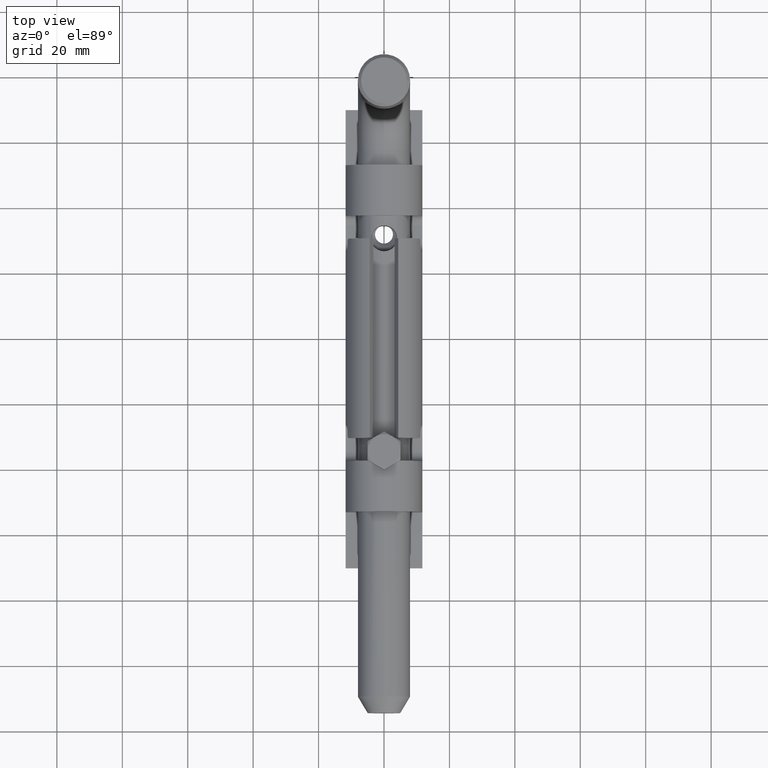
[diagram: clean part render]
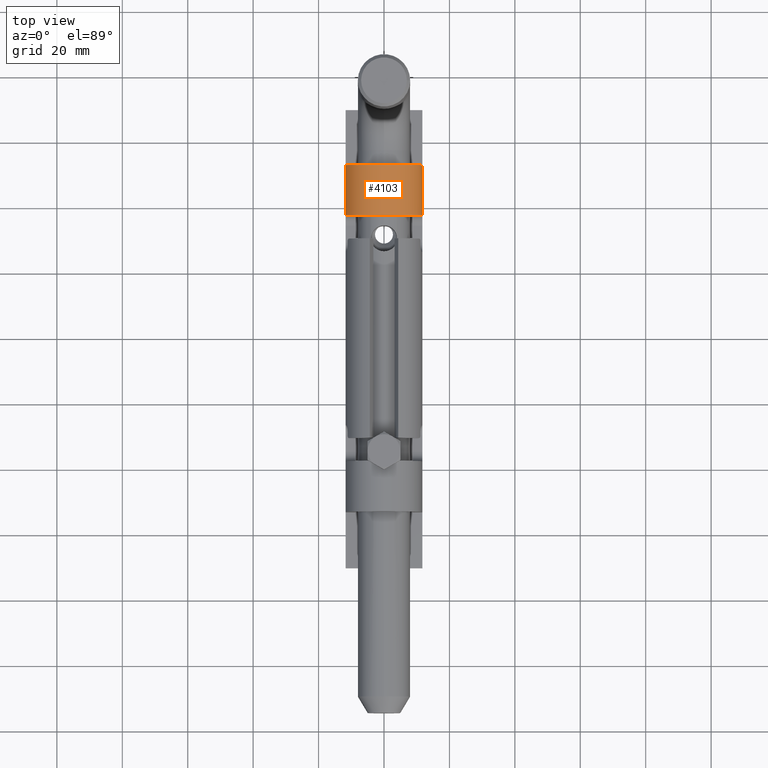
[diagram: same view with one face highlighted and labeled with its STEP entity id]
A machine part, top view. The second image highlights one B-rep face of the part: STEP entity #4103.
In plain terms, the highlighted cylindrical surface (partial cylindrical patch) has radius 11.75 mm, axis along (-0, -1, -0).
Its self-contained STEP definition (entity closure, byte-faithful):
#233 = EDGE_LOOP ( 'NONE', ( #9169, #478, #6964, #14090, #15936, #12034 ) ) ;
#423 = EDGE_CURVE ( 'NONE', #13199, #14105, #6484, .T. ) ;
#478 = ORIENTED_EDGE ( 'NONE', *, *, #423, .T. ) ;
#621 = DIRECTION ( 'NONE',  ( -0.000000000000000000, -1.000000000000000000, -0.000000000000000000 ) ) ;
#2063 = CIRCLE ( 'NONE', #10534, 11.75000000000000000 ) ;
#3093 = DIRECTION ( 'NONE',  ( -0.000000000000000000, -1.000000000000000000, -0.000000000000000000 ) ) ;
#3941 = LINE ( 'NONE', #5482, #10410 ) ;
#4103 = ADVANCED_FACE ( 'NONE', ( #7720 ), #4501, .T. ) ;
#4316 = EDGE_CURVE ( 'NONE', #11947, #8055, #15302, .T. ) ;
#4414 = CARTESIAN_POINT ( 'NONE',  ( 11.74999999999998934, 53.00000000000000000, 10.25000000000000888 ) ) ;
#4501 = CYLINDRICAL_SURFACE ( 'NONE', #14701, 11.75000000000000000 ) ;
#4821 = VERTEX_POINT ( 'NONE', #14590 ) ;
#5482 = CARTESIAN_POINT ( 'NONE',  ( -11.75000000000001066, 53.00000000000000000, 10.25000000000000888 ) ) ;
#5598 = EDGE_CURVE ( 'NONE', #8513, #4821, #14949, .T. ) ;
#6476 = EDGE_CURVE ( 'NONE', #14105, #11947, #2063, .T. ) ;
#6484 = B_SPLINE_CURVE_WITH_KNOTS ( 'NONE', 3,
 ( #10945, #9690, #14773, #16096 ),
 .UNSPECIFIED., .F., .F.,
 ( 4, 4 ),
 ( 0.000000000000000000, 0.0007564053492936992492 ),
 .UNSPECIFIED. ) ;
#6726 = CARTESIAN_POINT ( 'NONE',  ( 0.000000000000000000, 53.00000000000000000, 10.25000000000000888 ) ) ;
#6741 = EDGE_CURVE ( 'NONE', #4821, #8055, #9798, .T. ) ;
#6896 = CARTESIAN_POINT ( 'NONE',  ( 0.000000000000000000, 53.00000000000000000, 10.25000000000000888 ) ) ;
#6964 = ORIENTED_EDGE ( 'NONE', *, *, #6476, .T. ) ;
#7038 = AXIS2_PLACEMENT_3D ( 'NONE', #6726, #11864, #15557 ) ;
#7379 = CARTESIAN_POINT ( 'NONE',  ( -11.75000000000001066, 53.00000000000000000, 10.25000000000000888 ) ) ;
#7500 = CARTESIAN_POINT ( 'NONE',  ( 11.72603939955857477, 37.50000000000000000, 11.00000000000000000 ) ) ;
#7720 = FACE_OUTER_BOUND ( 'NONE', #233, .T. ) ;
#8055 = VERTEX_POINT ( 'NONE', #16228 ) ;
#8076 = CARTESIAN_POINT ( 'NONE',  ( 11.72603939955857477, 37.50000000000000000, 11.00000000000000000 ) ) ;
#8513 = VERTEX_POINT ( 'NONE', #7379 ) ;
#8851 = CARTESIAN_POINT ( 'NONE',  ( 11.75000000000000000, 37.46830962659335285, 10.49621375018322844 ) ) ;
#9169 = ORIENTED_EDGE ( 'NONE', *, *, #12593, .T. ) ;
#9549 = DIRECTION ( 'NONE',  ( 0.000000000000000000, 1.000000000000000000, 0.000000000000000000 ) ) ;
#9690 = CARTESIAN_POINT ( 'NONE',  ( -11.75000000000000533, 37.46830962659335285, 10.49621375018322844 ) ) ;
#9718 = CARTESIAN_POINT ( 'NONE',  ( 0.000000000000000000, 37.50000000000000000, 10.25000000000000888 ) ) ;
#9798 = LINE ( 'NONE', #4414, #13018 ) ;
#10115 = CARTESIAN_POINT ( 'NONE',  ( -11.72603939955857477, 37.50000000000000000, 11.00000000000000000 ) ) ;
#10410 = VECTOR ( 'NONE', #16091, 1000.000000000000000 ) ;
#10534 = AXIS2_PLACEMENT_3D ( 'NONE', #9718, #9549, #16072 ) ;
#10945 = CARTESIAN_POINT ( 'NONE',  ( -11.75000000000001066, 37.40473750965556121, 10.25000000000000888 ) ) ;
#11469 = CARTESIAN_POINT ( 'NONE',  ( -11.75000000000001066, 37.40473750965556121, 10.25000000000000888 ) ) ;
#11864 = DIRECTION ( 'NONE',  ( 0.000000000000000000, 1.000000000000000000, 0.000000000000000000 ) ) ;
#11947 = VERTEX_POINT ( 'NONE', #8076 ) ;
#12034 = ORIENTED_EDGE ( 'NONE', *, *, #5598, .F. ) ;
#12258 = DIRECTION ( 'NONE',  ( 0.000000000000000000, 0.000000000000000000, -1.000000000000000000 ) ) ;
#12593 = EDGE_CURVE ( 'NONE', #8513, #13199, #3941, .T. ) ;
#12633 = CARTESIAN_POINT ( 'NONE',  ( 11.74999999999998934, 37.40473750965556121, 10.25000000000000888 ) ) ;
#13018 = VECTOR ( 'NONE', #621, 1000.000000000000000 ) ;
#13199 = VERTEX_POINT ( 'NONE', #11469 ) ;
#13881 = CARTESIAN_POINT ( 'NONE',  ( 11.74227057835120114, 37.50000000000000000, 10.74623007730182245 ) ) ;
#14090 = ORIENTED_EDGE ( 'NONE', *, *, #4316, .T. ) ;
#14105 = VERTEX_POINT ( 'NONE', #10115 ) ;
#14590 = CARTESIAN_POINT ( 'NONE',  ( 11.74999999999998934, 53.00000000000000000, 10.25000000000000888 ) ) ;
#14701 = AXIS2_PLACEMENT_3D ( 'NONE', #6896, #3093, #12258 ) ;
#14773 = CARTESIAN_POINT ( 'NONE',  ( -11.74227057835120114, 37.50000000000000000, 10.74623007730182067 ) ) ;
#14949 = CIRCLE ( 'NONE', #7038, 11.75000000000000000 ) ;
#15302 = B_SPLINE_CURVE_WITH_KNOTS ( 'NONE', 3,
 ( #7500, #13881, #8851, #12633 ),
 .UNSPECIFIED., .F., .F.,
 ( 4, 4 ),
 ( 0.000000000000000000, 0.0007564053492936991408 ),
 .UNSPECIFIED. ) ;
#15557 = DIRECTION ( 'NONE',  ( 0.000000000000000000, 0.000000000000000000, 1.000000000000000000 ) ) ;
#15936 = ORIENTED_EDGE ( 'NONE', *, *, #6741, .F. ) ;
#16072 = DIRECTION ( 'NONE',  ( 0.000000000000000000, 0.000000000000000000, 1.000000000000000000 ) ) ;
#16091 = DIRECTION ( 'NONE',  ( -0.000000000000000000, -1.000000000000000000, -0.000000000000000000 ) ) ;
#16096 = CARTESIAN_POINT ( 'NONE',  ( -11.72603939955857477, 37.50000000000000000, 11.00000000000000000 ) ) ;
#16228 = CARTESIAN_POINT ( 'NONE',  ( 11.74999999999998934, 37.40473750965556121, 10.25000000000000888 ) ) ;